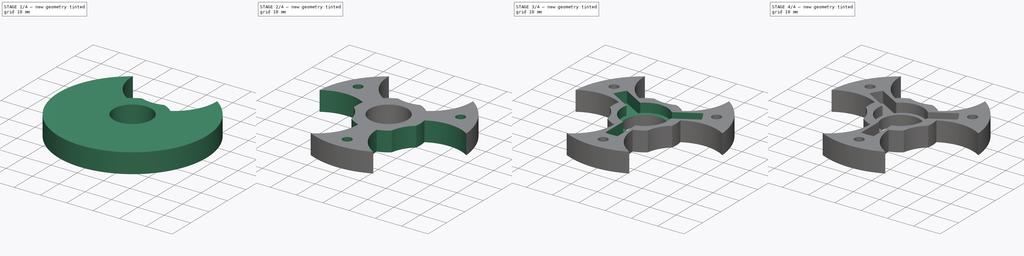
[diagram: build sequence overview — one tinted view per stage of 4, left to right]
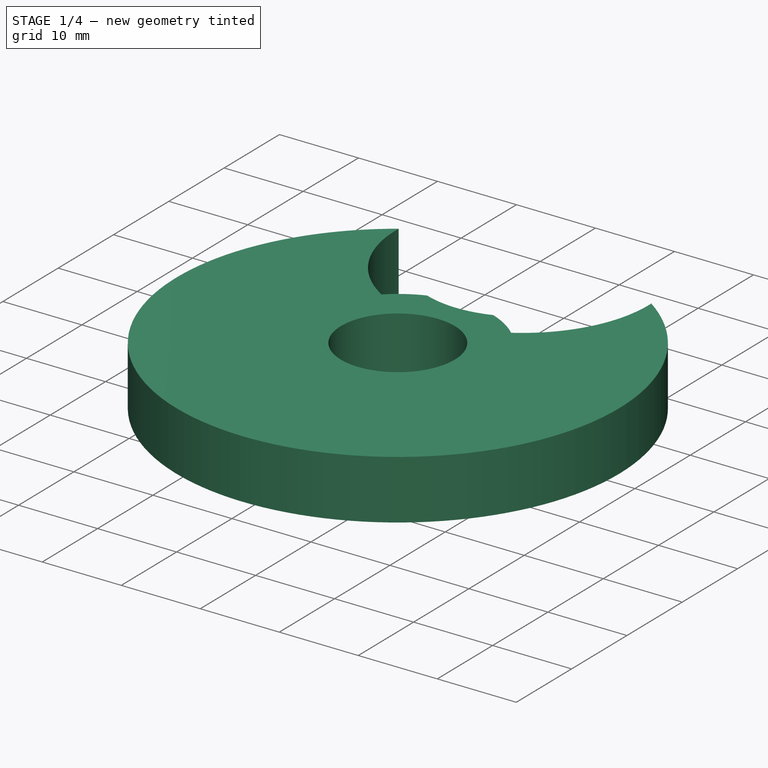
[diagram: stage 1 of 4 — iso view after this stage's code; geometry added in this stage tinted green]
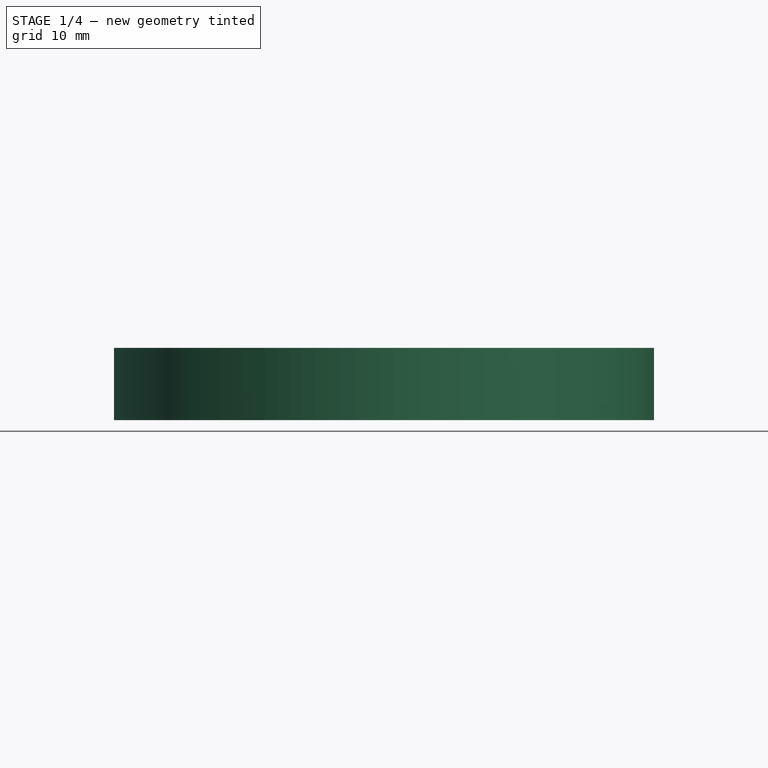
[diagram: stage 1 of 4 — front view after this stage's code; geometry added in this stage tinted green]
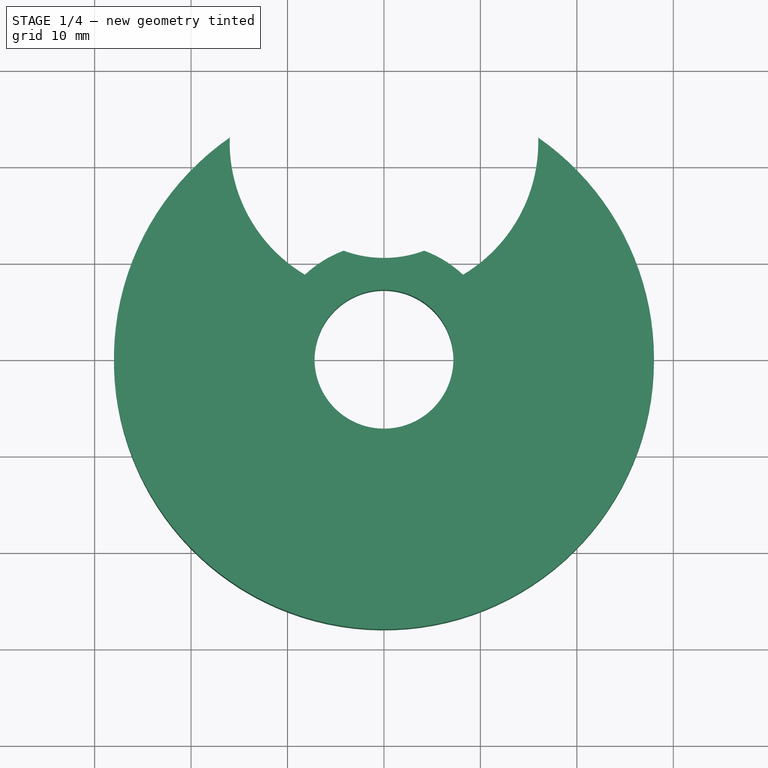
[diagram: stage 1 of 4 — top view after this stage's code; geometry added in this stage tinted green]
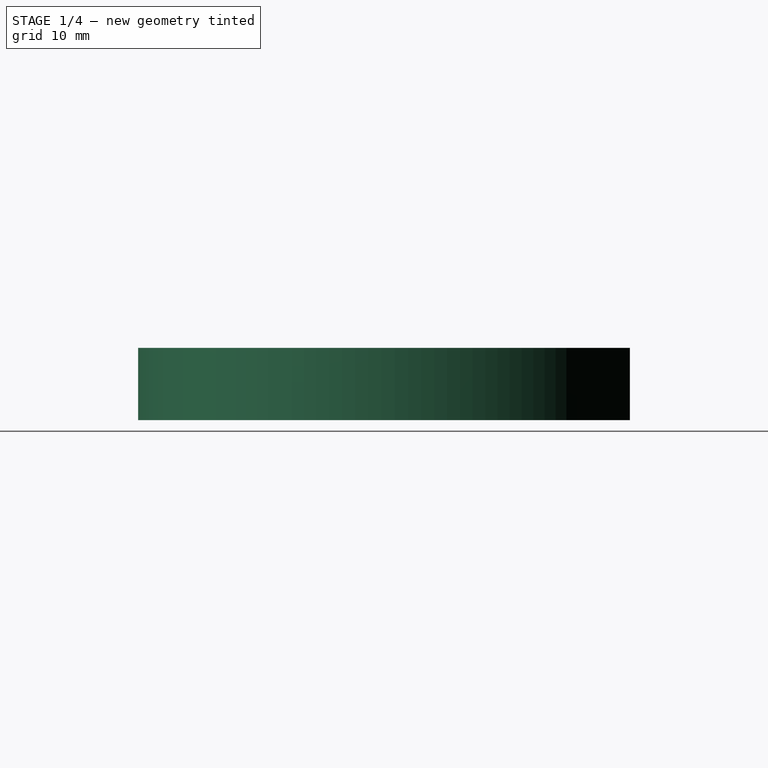
[diagram: stage 1 of 4 — right view after this stage's code; geometry added in this stage tinted green]
FCSTD DOCUMENT  (FreeCAD 0.16R6705 (Git))
Label: CarrierC
License: All rights reserved
LicenseURL: http://en.wikipedia.org/wiki/All_rights_reserved
objects: Sketcher::SketchObject×6, PartDesign::Pocket×5, PartDesign::PolarPattern×3, PartDesign::Pad×1
note: 21 computed .brp shape members not serialized (recipe doc carries the construction recipe); baked Part::Feature solids carry a one-line shape summary decoded from their .brp

FEATURE [Sketcher::SketchObject] Sketch
  Placement = pos=(0,0,25) rot=(0,0,1;0rad)
  sketch-geometry (12):
    g0: Circle [constr] CenterX=0 CenterY=0 CenterZ=0 NormalX=0 NormalY=0 NormalZ=1 Radius=22.5
    g1: LineSegment [constr] StartX=0 StartY=0 StartZ=0 EndX=-19.4856 EndY=-11.25 EndZ=0
    g2: LineSegment [constr] StartX=0 StartY=0 StartZ=0 EndX=19.4856 EndY=-11.25 EndZ=0
    g3: LineSegment [constr] StartX=0 StartY=0 StartZ=0 EndX=0 EndY=22.5 EndZ=0
    g4: Circle [constr] CenterX=0 CenterY=22.5 CenterZ=0 NormalX=0 NormalY=0 NormalZ=1 Radius=1.6
    g5: Circle [constr] CenterX=-19.4856 CenterY=-11.25 CenterZ=0 NormalX=0 NormalY=0 NormalZ=1 Radius=1.6
    g6: Circle [constr] CenterX=19.4856 CenterY=-11.25 CenterZ=0 NormalX=0 NormalY=0 NormalZ=1 Radius=1.6
    g7: Circle CenterX=0 CenterY=0 CenterZ=0 NormalX=0 NormalY=0 NormalZ=1 Radius=7.2
    g8: Circle CenterX=0 CenterY=0 CenterZ=0 NormalX=0 NormalY=0 NormalZ=1 Radius=28
    g9: LineSegment [constr] StartX=0 StartY=0 StartZ=0 EndX=-24.2487 EndY=14 EndZ=0
    g10: LineSegment [constr] StartX=0 StartY=0 StartZ=0 EndX=24.2487 EndY=14 EndZ=0
    g11: LineSegment [constr] StartX=0 StartY=0 StartZ=0 EndX=0 EndY=-28 EndZ=0
  constraints (30):
    c: Coincident(g0,g-1)
    c: Radius(g0) = 22.5
    c: Coincident(g1,g-1)
    c: PointOnObject(g1,g0)
    c: Coincident(g2,g-1)
    c: PointOnObject(g2,g0)
    c: Angle(g1,g2) = 2.0944
    c: Coincident(g3,g-1)
    c: PointOnObject(g3,g0)
    c: Vertical(g3)
    c: Angle(g2,g3) = 2.0944
    c: Coincident(g4,g3)
    c: Coincident(g5,g1)
    c: Coincident(g6,g2)
    c: Coincident(g7,g-1)
    c: Radius(g6) = 1.6
    c: Equal(g6,g4)
    c: Equal(g6,g5)
    c: Radius(g7) = 7.2
    c: Radius(g8) = 28
    c: Coincident(g9,g-1)
    c: PointOnObject(g9,g8)
    c: Coincident(g8,g-1)
    c: Coincident(g10,g-1)
    c: PointOnObject(g10,g8)
    c: Coincident(g11,g-1)
    c: PointOnObject(g11,g8)
    c: Angle(g11,g10) = 2.0944
    c: Angle(g9,g11) = 2.0944
    c: Vertical(g11)
FEATURE [PartDesign::Pad] Pad
  Length = 7.5
  Length2 = 100
  Placement = pos=(0,0,25) rot=(0,0,1;0rad)
  Sketch = -> Sketch
  Type = 0
FEATURE [Sketcher::SketchObject] Sketch002  label="GearCutOut"
  Placement = pos=(0,0,32.5) rot=(0,0,1;0rad)
  Support = -> Pad [Face4]
  sketch-geometry (6):
    g0: Circle [constr] CenterX=0 CenterY=0 CenterZ=0 NormalX=0 NormalY=0 NormalZ=1 Radius=22.5
    g1: LineSegment [constr] StartX=0 StartY=0 StartZ=0 EndX=0 EndY=22.5 EndZ=0
    g2: ArcOfCircle CenterX=0 CenterY=22.5 CenterZ=0 NormalX=0 NormalY=0 NormalZ=1 Radius=12 StartAngle=4.35697 EndAngle=5.06781
    g3: ArcOfCircle CenterX=0 CenterY=22.5 CenterZ=0 NormalX=0 NormalY=0 NormalZ=1 Radius=16 StartAngle=5.2505 EndAngle=10.4575
    g4: ArcOfCircle CenterX=0 CenterY=0 CenterZ=0 NormalX=0 NormalY=0 NormalZ=1 Radius=12 StartAngle=1.92622 EndAngle=2.32314
    g5: ArcOfCircle CenterX=0 CenterY=0 CenterZ=0 NormalX=0 NormalY=0 NormalZ=1 Radius=12 StartAngle=0.818457 EndAngle=1.21538
  constraints (17):
    c: Radius(g0) = 22.5
    c: PointOnObject(g1,g0)
    c: Vertical(g1)
    c: Coincident(g2,g1)
    c: Coincident(g3,g1)
    c: Radius(g3) = 16
    c: Coincident(g4,g3)
    c: Coincident(g5,g3)
    c: Coincident(g2,g4)
    c: Coincident(g2,g5)
    c: Coincident(g1,g-1)
    c: Coincident(g0,g4)
    c: Radius(g2) = 12
    c: Coincident(g5,g0)
    c: Coincident(g0,g-1)
    c: Radius(g4) = 12
    c: Equal(g4,g5)
FEATURE [PartDesign::Pocket] Pocket
  Length = 11.5
  Placement = pos=(0,0,25) rot=(0,0,1;0rad)
  Sketch = -> Sketch002
  Type = 1
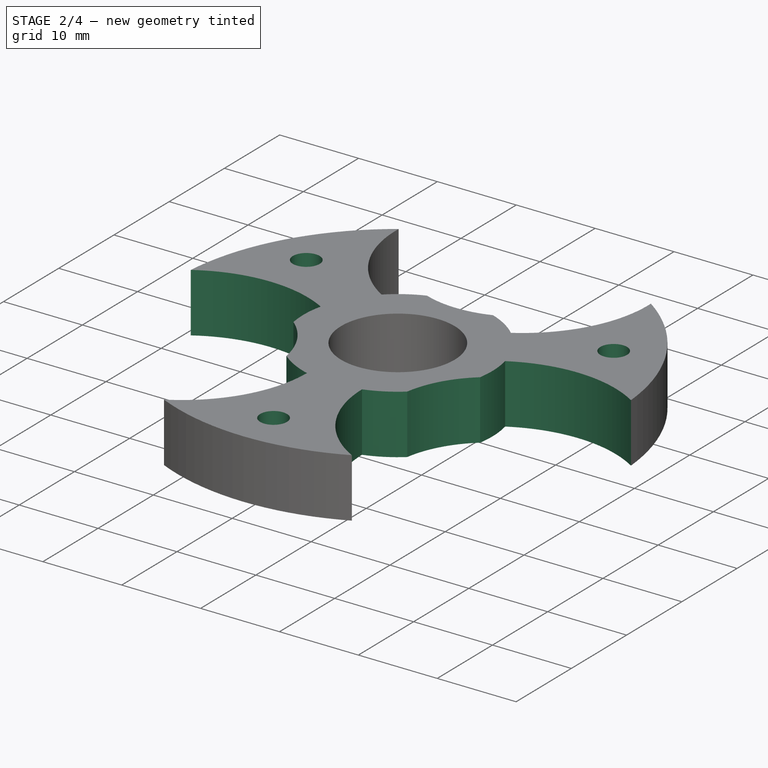
[diagram: stage 2 of 4 — iso view after this stage's code; geometry added in this stage tinted green]
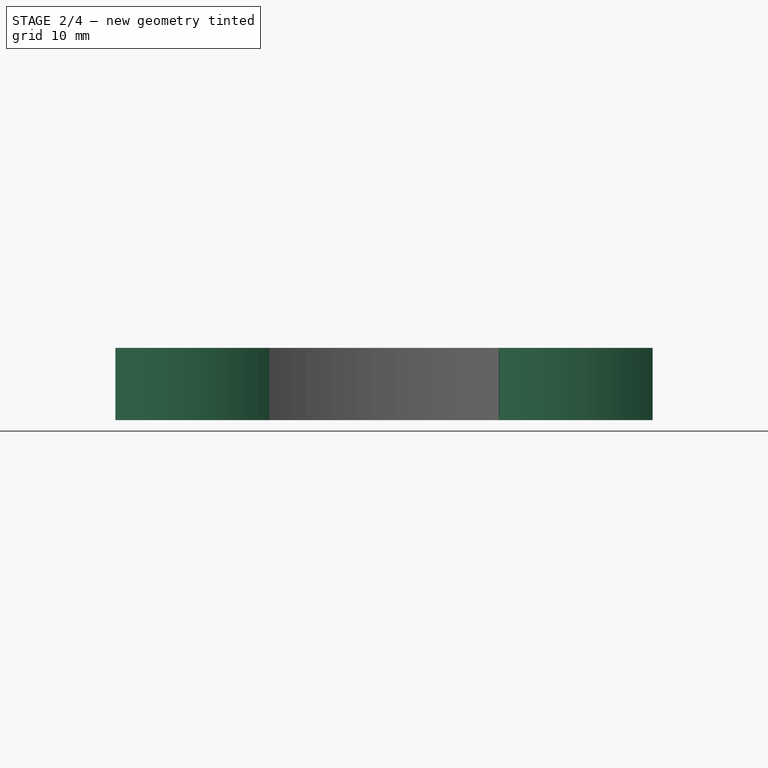
[diagram: stage 2 of 4 — front view after this stage's code; geometry added in this stage tinted green]
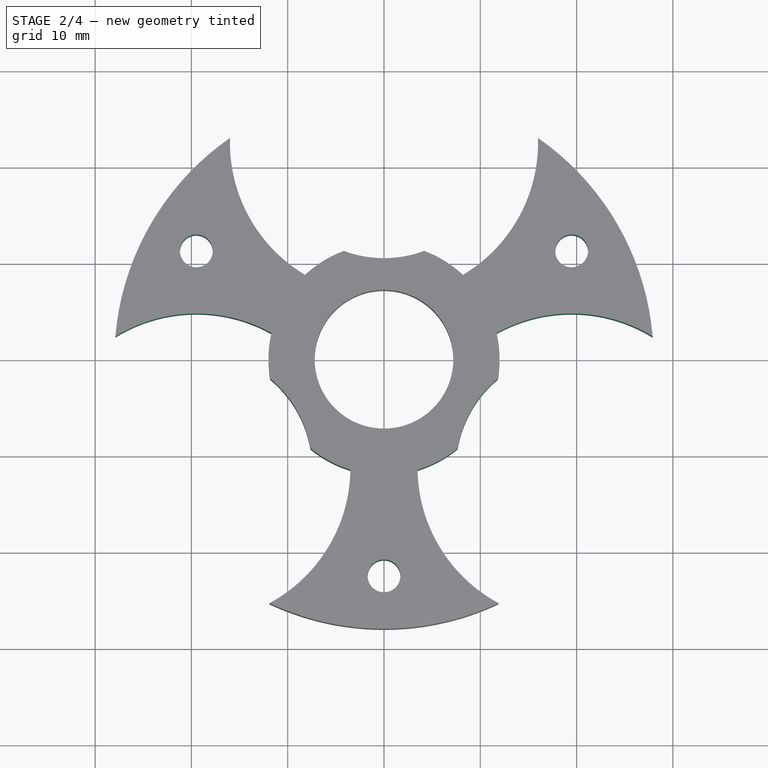
[diagram: stage 2 of 4 — top view after this stage's code; geometry added in this stage tinted green]
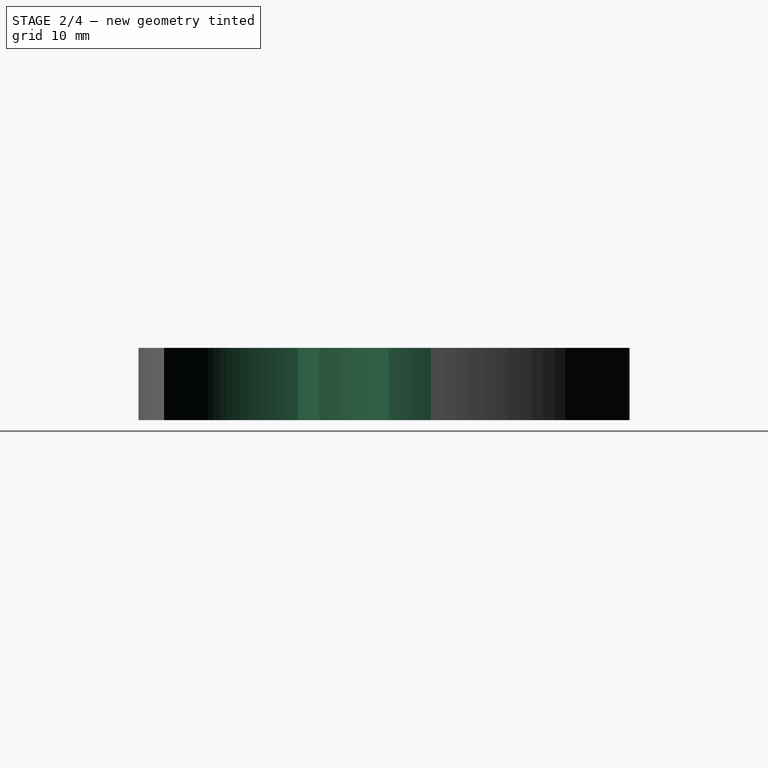
[diagram: stage 2 of 4 — right view after this stage's code; geometry added in this stage tinted green]
FEATURE [PartDesign::PolarPattern] PolarPattern
  Angle = 360
  Axis = -> Sketch002 [N_Axis]
  Occurrences = 3
  Originals = -> [Pocket]
  Placement = pos=(0,0,25) rot=(0,0,1;0rad)
FEATURE [Sketcher::SketchObject] Sketch003  label="ScrewHoles"
  Placement = pos=(0,0,32.5) rot=(0,0,1;0rad)
  Support = -> PolarPattern [Face21]
  sketch-geometry (18):
    g0: Circle [constr] CenterX=0 CenterY=0 CenterZ=0 NormalX=0 NormalY=0 NormalZ=1 Radius=22.5
    g1: LineSegment [constr] StartX=0 StartY=0 StartZ=0 EndX=-19.4856 EndY=-11.25 EndZ=0
    g2: LineSegment [constr] StartX=0 StartY=0 StartZ=0 EndX=19.4856 EndY=-11.25 EndZ=0
    g3: LineSegment [constr] StartX=0 StartY=0 StartZ=0 EndX=0 EndY=22.5 EndZ=0
    g4: Circle CenterX=0 CenterY=22.5 CenterZ=0 NormalX=0 NormalY=0 NormalZ=1 Radius=1.7
    g5: Circle CenterX=-19.4856 CenterY=-11.25 CenterZ=0 NormalX=0 NormalY=0 NormalZ=1 Radius=1.7
    g6: Circle CenterX=19.4856 CenterY=-11.25 CenterZ=0 NormalX=0 NormalY=0 NormalZ=1 Radius=1.7
    g7: Circle [constr] CenterX=0 CenterY=0 CenterZ=0 NormalX=0 NormalY=0 NormalZ=1 Radius=14
    g8: Circle [constr] CenterX=0 CenterY=0 CenterZ=0 NormalX=0 NormalY=0 NormalZ=1 Radius=28
    g9: LineSegment [constr] StartX=0 StartY=0 StartZ=0 EndX=-24.2487 EndY=14 EndZ=0
    g10: LineSegment [constr] StartX=0 StartY=0 StartZ=0 EndX=24.2487 EndY=14 EndZ=0
    g11: LineSegment [constr] StartX=0 StartY=0 StartZ=0 EndX=0 EndY=-28 EndZ=0
    g12: GeomPoint [constr] X=-19.4856 Y=11.25 Z=0
    g13: GeomPoint [constr] X=19.4856 Y=11.25 Z=0
    g14: GeomPoint [constr] X=0 Y=-22.5 Z=0
    g15: Circle CenterX=-19.4856 CenterY=11.25 CenterZ=0 NormalX=0 NormalY=0 NormalZ=1 Radius=1.7
    g16: Circle CenterX=19.4856 CenterY=11.25 CenterZ=0 NormalX=0 NormalY=0 NormalZ=1 Radius=1.7
    g17: Circle CenterX=0 CenterY=-22.5 CenterZ=0 NormalX=0 NormalY=0 NormalZ=1 Radius=1.7
  constraints (42):
    c: Coincident(g0,g-1)
    c: Radius(g0) = 22.5
    c: Coincident(g1,g-1)
    c: PointOnObject(g1,g0)
    c: Coincident(g2,g-1)
    c: PointOnObject(g2,g0)
    c: Angle(g1,g2) = 2.0944
    c: Coincident(g3,g-1)
    c: PointOnObject(g3,g0)
    c: Vertical(g3)
    c: Angle(g2,g3) = 2.0944
    c: Coincident(g4,g3)
    c: Coincident(g5,g1)
    c: Coincident(g6,g2)
    c: Coincident(g7,g-1)
    c: Radius(g6) = 1.7
    c: Equal(g6,g4)
    c: Equal(g6,g5)
    c: Radius(g7) = 14
    c: Radius(g8) = 28
    c: Coincident(g9,g-1)
    c: PointOnObject(g9,g8)
    c: Coincident(g8,g-1)
    c: Coincident(g10,g-1)
    c: PointOnObject(g10,g8)
    c: Coincident(g11,g-1)
    c: PointOnObject(g11,g8)
    c: Angle(g11,g10) = 2.0944
    c: Angle(g9,g11) = 2.0944
    c: Vertical(g11)
    c: PointOnObject(g12,g0)
    c: PointOnObject(g12,g9)
    c: PointOnObject(g13,g0)
    c: PointOnObject(g13,g10)
    c: PointOnObject(g14,g0)
    c: PointOnObject(g14,g11)
    c: Coincident(g15,g12)
    c: Coincident(g16,g13)
    c: Coincident(g17,g14)
    c: Radius(g17) = 1.7
    c: Equal(g17,g16)
    c: Equal(g17,g15)
FEATURE [PartDesign::Pocket] Pocket001
  Length = 12.4
  Placement = pos=(0,0,25) rot=(0,0,1;0rad)
  Sketch = -> Sketch003
  Type = 1
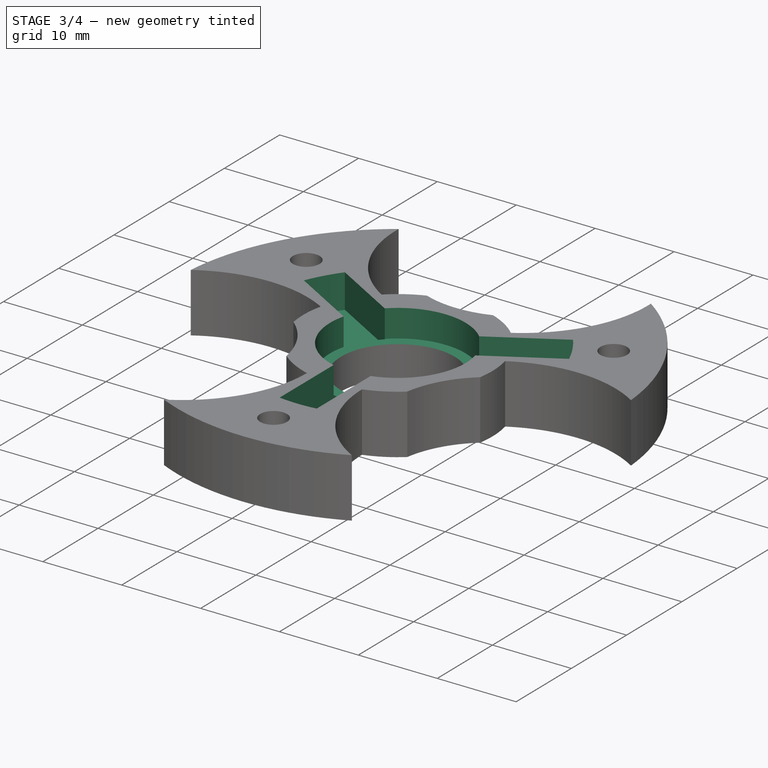
[diagram: stage 3 of 4 — iso view after this stage's code; geometry added in this stage tinted green]
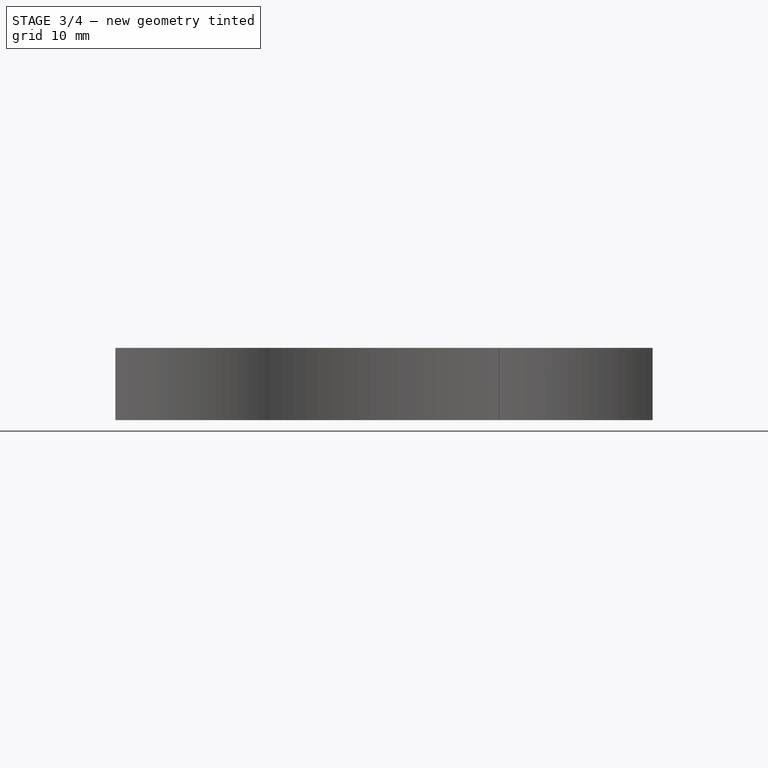
[diagram: stage 3 of 4 — front view after this stage's code; geometry added in this stage tinted green]
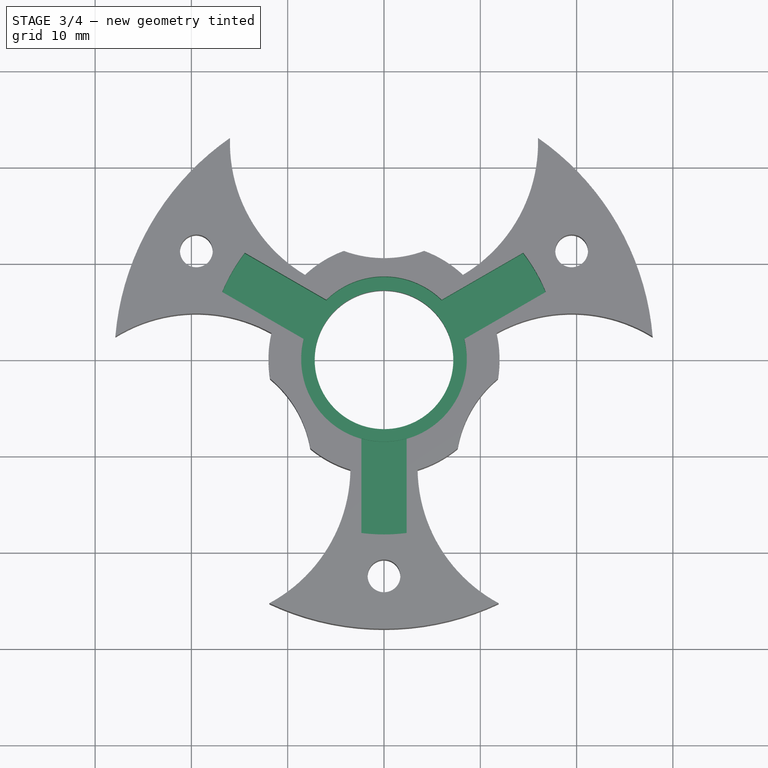
[diagram: stage 3 of 4 — top view after this stage's code; geometry added in this stage tinted green]
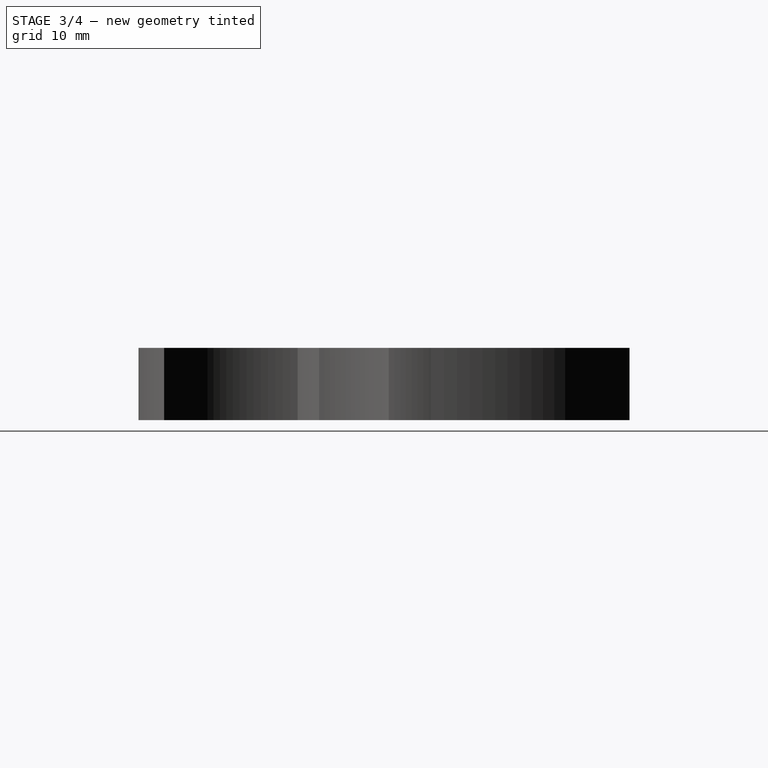
[diagram: stage 3 of 4 — right view after this stage's code; geometry added in this stage tinted green]
FEATURE [Sketcher::SketchObject] Sketch007  label="BearingHole"
  Placement = pos=(0,0,32.5) rot=(0,0,1;0rad)
  Support = -> Pocket001 [Face24]
  sketch-geometry (1):
    g0: Circle CenterX=0 CenterY=0 CenterZ=0 NormalX=0 NormalY=0 NormalZ=1 Radius=8.6
  constraints (2):
    c: Coincident(g0,g-1)
    c: Radius(g0) = 8.6
FEATURE [PartDesign::Pocket] Pocket005
  Length = 3.5
  Placement = pos=(0,0,25) rot=(0,0,1;0rad)
  Sketch = -> Sketch007
  Type = 0
FEATURE [Sketcher::SketchObject] Sketch005  label="Lock"
  Placement = pos=(0,0,32.5) rot=(0,0,1;0rad)
  Support = -> Pocket005 [Face24]
  sketch-geometry (4):
    g0: LineSegment StartX=-2.35 StartY=-8.16869 StartZ=0 EndX=-2.35 EndY=-18.0476 EndZ=0
    g1: LineSegment StartX=2.35 StartY=-8.16869 StartZ=0 EndX=2.35 EndY=-18.0476 EndZ=0
    g2: ArcOfCircle CenterX=0 CenterY=0 CenterZ=0 NormalX=0 NormalY=0 NormalZ=1 Radius=8.5 StartAngle=4.43227 EndAngle=4.99251
    g3: ArcOfCircle CenterX=0 CenterY=0 CenterZ=0 NormalX=0 NormalY=0 NormalZ=1 Radius=18.2 StartAngle=4.58291 EndAngle=4.84187
  constraints (12):
    c: Vertical(g0)
    c: Vertical(g1)
    c: Coincident(g2,g-1)
    c: Coincident(g2,g1)
    c: Coincident(g2,g0)
    c: Coincident(g3,g-1)
    c: Coincident(g3,g1)
    c: Coincident(g3,g0)
    c: Symmetric(g1,g0,g-2)
    c: DistanceX(g0,g1) = 4.7
    c: Radius(g2) = 8.5
    c: Radius(g3) = 18.2
FEATURE [PartDesign::Pocket] Pocket006
  Length = 4.3
  Placement = pos=(0,0,25) rot=(0,0,1;0rad)
  Sketch = -> Sketch005
  Type = 0
FEATURE [PartDesign::PolarPattern] PolarPattern001  label="Lock1"
  Angle = 360
  Axis = -> Sketch005 [N_Axis]
  Occurrences = 3
  Originals = -> [Pocket006]
  Placement = pos=(0,0,25) rot=(0,0,1;0rad)
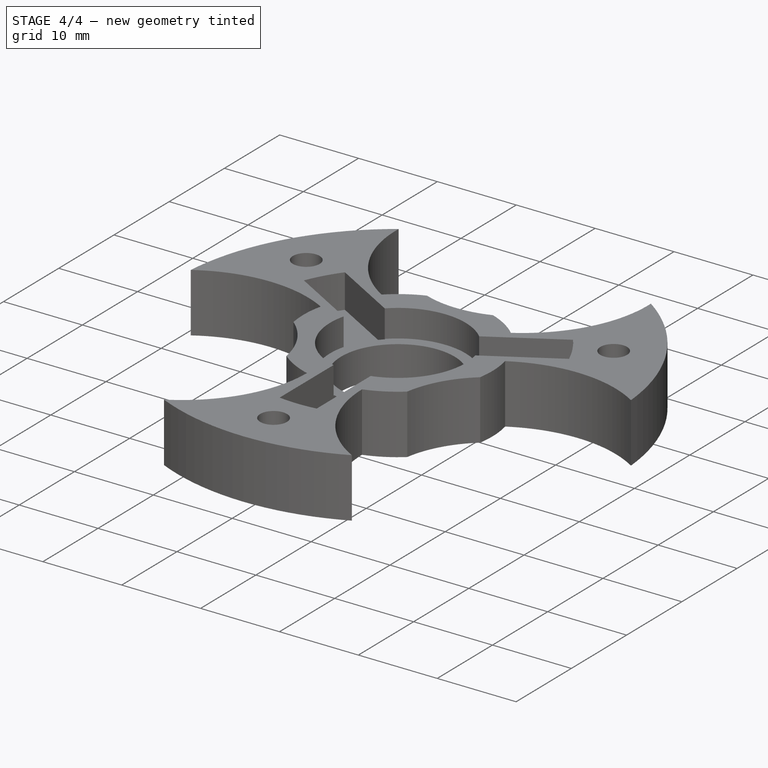
[diagram: stage 4 of 4 — iso view after this stage's code; geometry added in this stage tinted green]
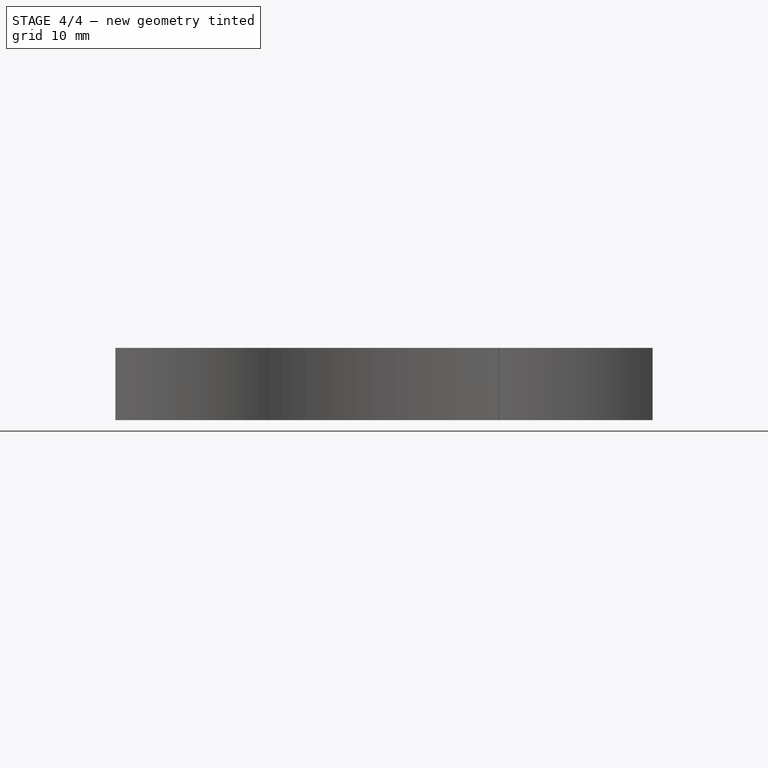
[diagram: stage 4 of 4 — front view after this stage's code; geometry added in this stage tinted green]
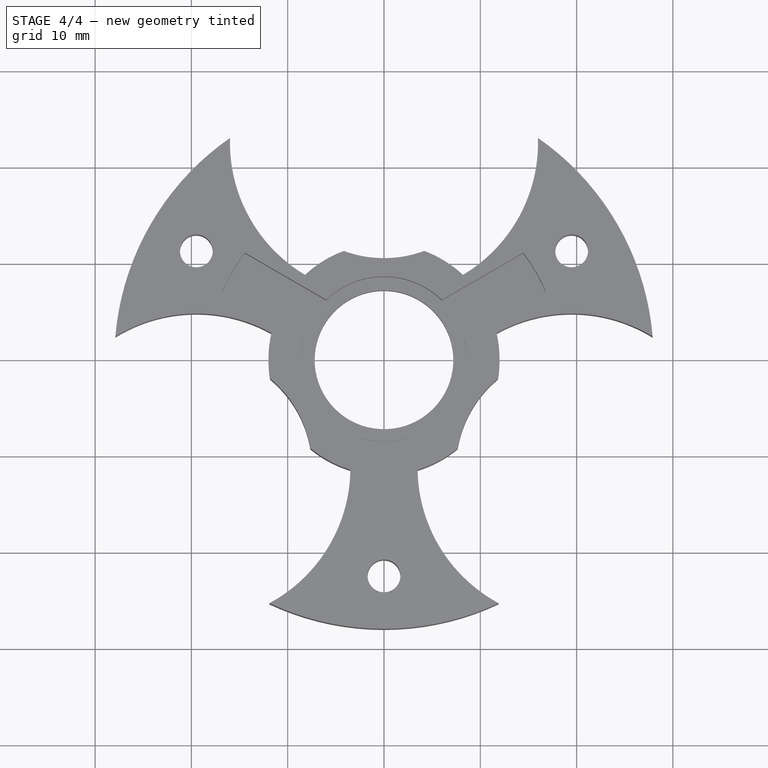
[diagram: stage 4 of 4 — top view after this stage's code; geometry added in this stage tinted green]
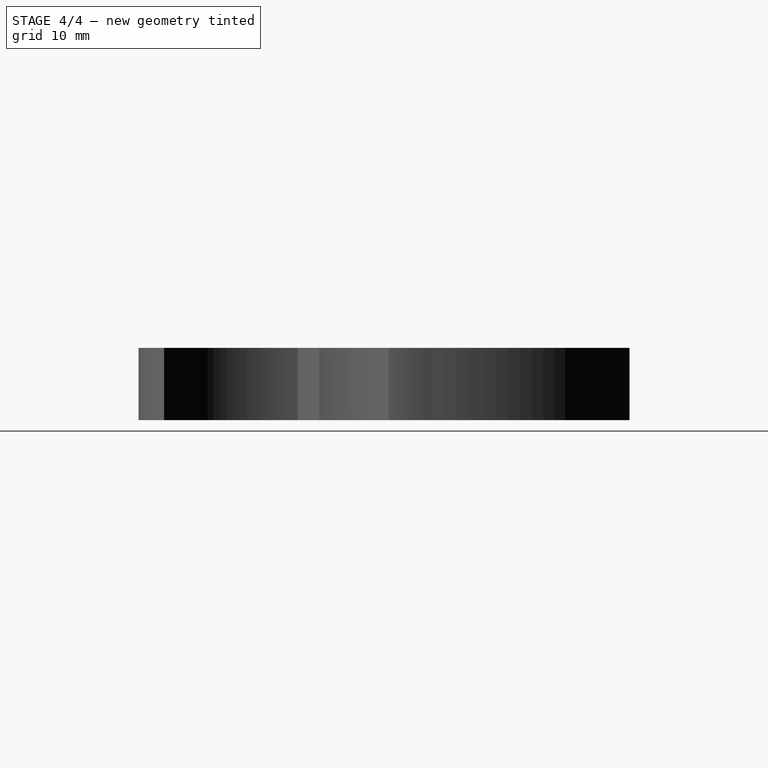
[diagram: stage 4 of 4 — right view after this stage's code; geometry added in this stage tinted green]
FEATURE [Sketcher::SketchObject] Sketch009  label="Lock001"
  Placement = pos=(0,0,25) rot=(1,0,0;3.14159rad)
  Support = -> PolarPattern001 [Face1]
  sketch-geometry (4):
    g0: LineSegment StartX=2.35 StartY=12.7858 StartZ=0 EndX=2.35 EndY=17.9468 EndZ=0
    g1: LineSegment StartX=-2.35 StartY=12.7858 StartZ=0 EndX=-2.35 EndY=17.9468 EndZ=0
    g2: ArcOfCircle CenterX=0 CenterY=0 CenterZ=0 NormalX=0 NormalY=0 NormalZ=1 Radius=13 StartAngle=1.38903 EndAngle=1.75256
    g3: ArcOfCircle CenterX=0 CenterY=0 CenterZ=0 NormalX=0 NormalY=0 NormalZ=1 Radius=18.1 StartAngle=1.44059 EndAngle=1.701
  constraints (12):
    c: Vertical(g0)
    c: Vertical(g1)
    c: Coincident(g2,g1)
    c: Coincident(g2,g0)
    c: Coincident(g3,g1)
    c: Coincident(g3,g0)
    c: Radius(g2) = 13
    c: Radius(g3) = 18.1
    c: DistanceX(g1,g0) = 4.7
    c: Symmetric(g0,g1,g-2)
    c: Coincident(g2,g3)
    c: Coincident(g2,g-1)
FEATURE [PartDesign::Pocket] Pocket007
  Length = 2.3
  Placement = pos=(0,0,25) rot=(0,0,1;0rad)
  Sketch = -> Sketch009
  Type = 0
FEATURE [PartDesign::PolarPattern] PolarPattern002  label="Final"
  Angle = 360
  Axis = -> Sketch009 [N_Axis]
  Occurrences = 3
  Originals = -> [Pocket007]
  Placement = pos=(0,0,25) rot=(0,0,1;0rad)
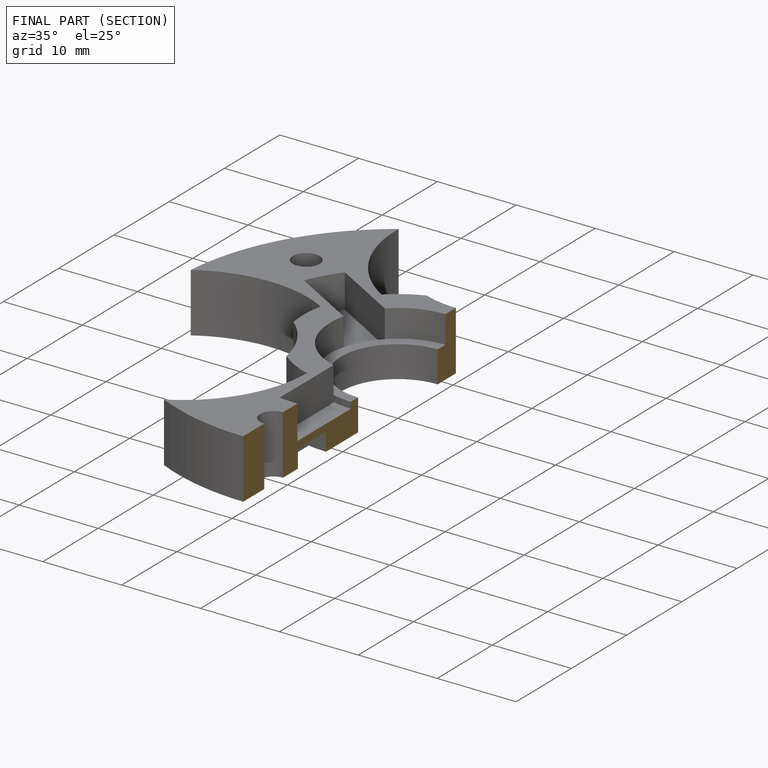
[diagram: finished part — half-section view (interior)]
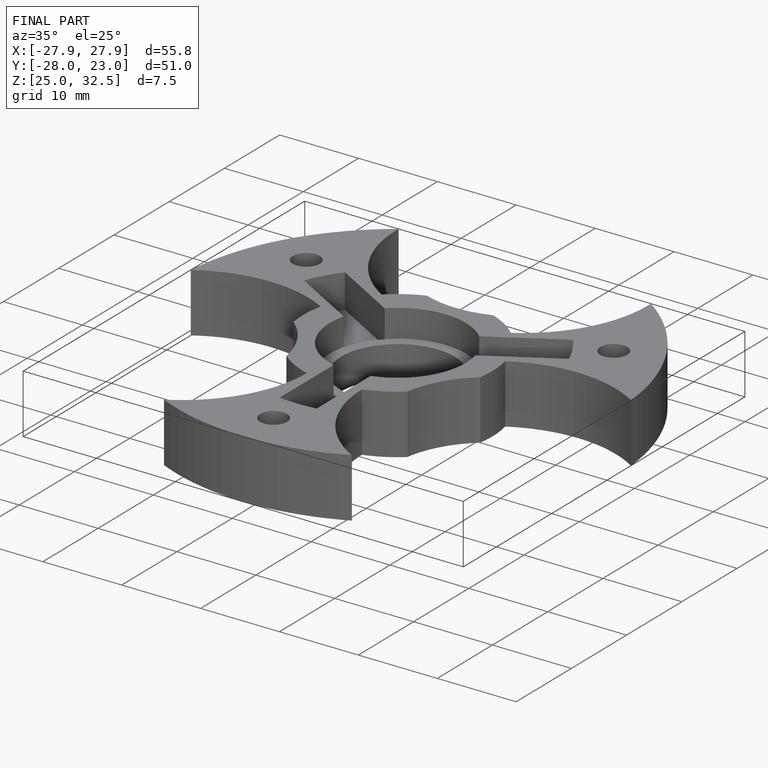
[diagram: finished part — iso view with bounding-box wireframe]
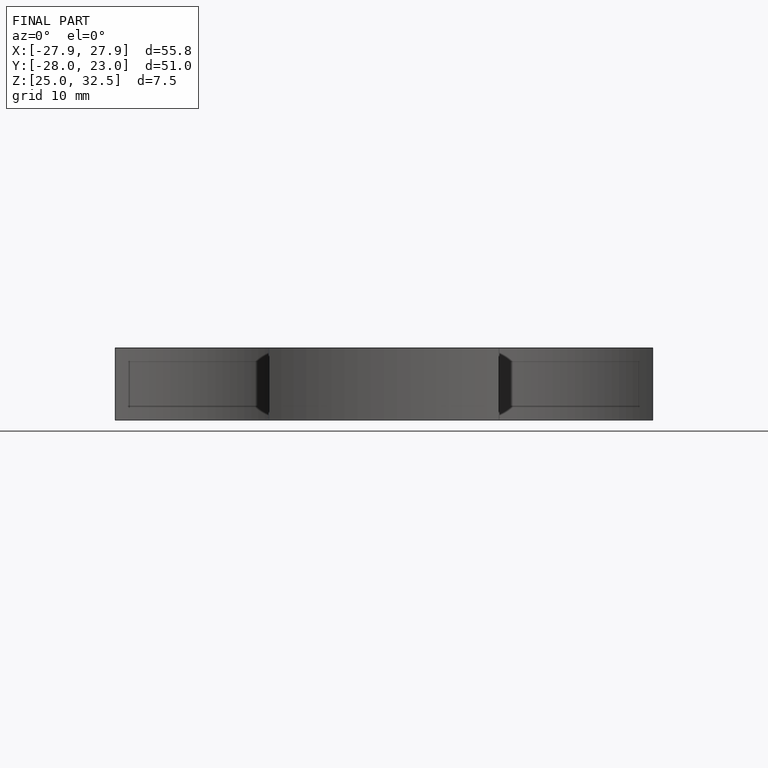
[diagram: finished part — front view with bounding-box wireframe]
